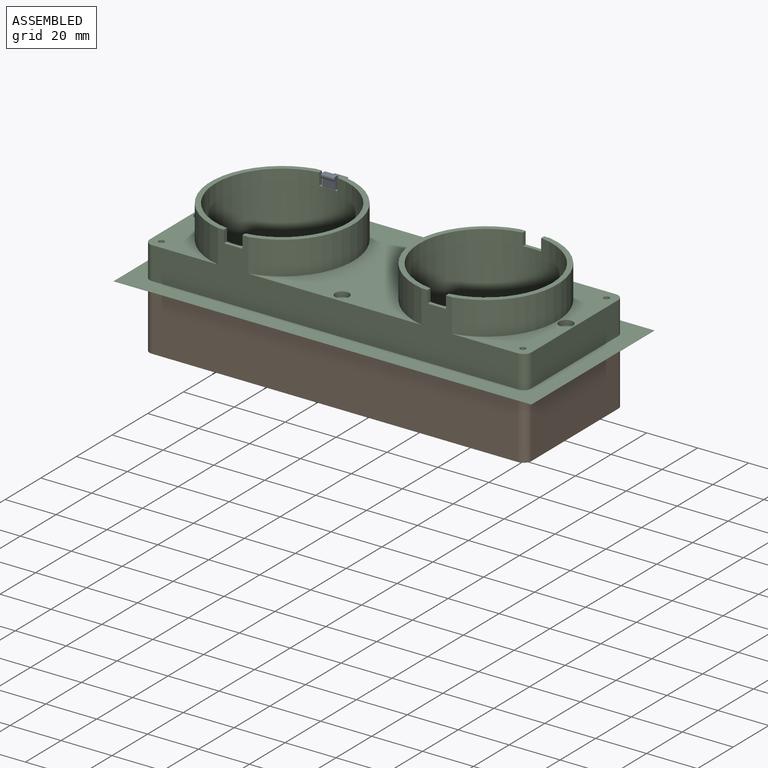
[diagram: assembled view]
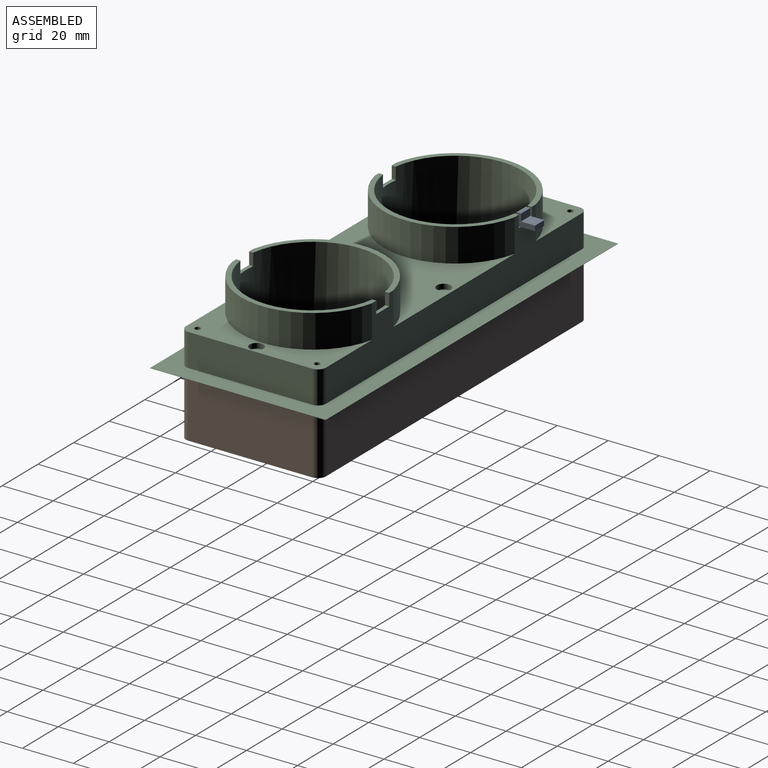
[diagram: assembled view, second angle]
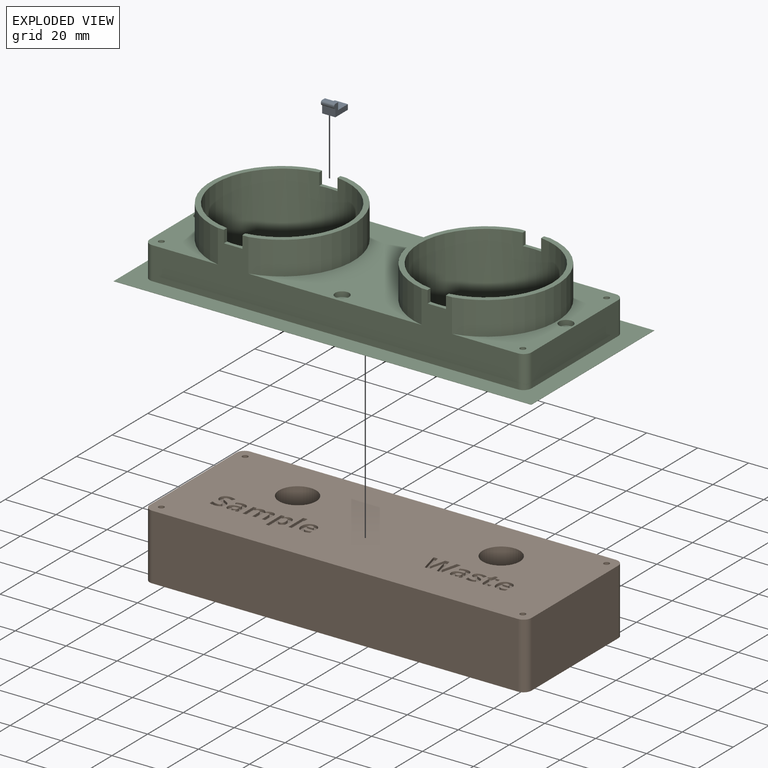
[diagram: exploded view]
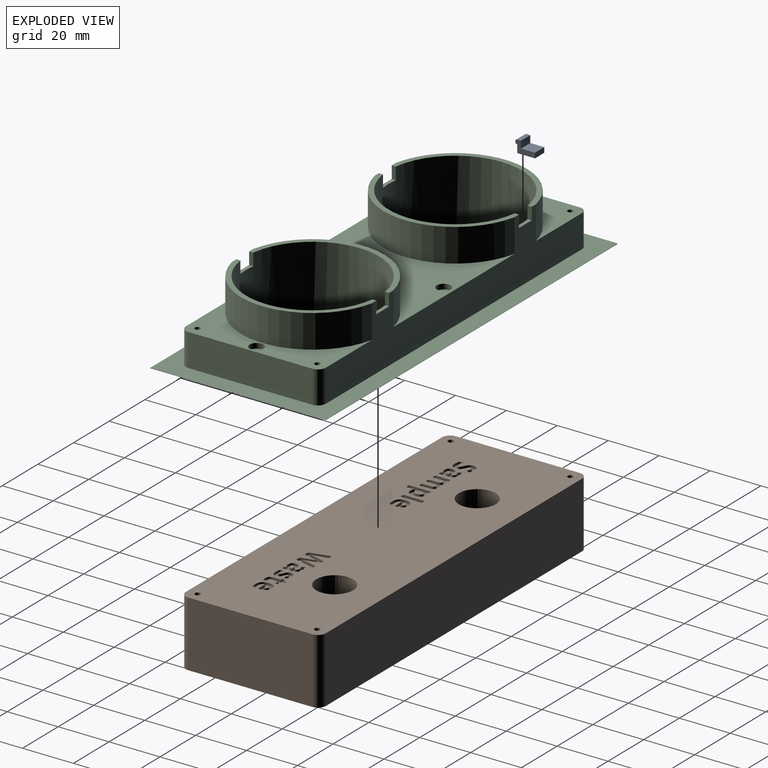
[diagram: exploded view, second angle]
ASSEMBLY  parts=3 mates=2
PART A: 11 faces, bbox 7.8x4.8x5.2 mm
  f0: plane 5.2x3.05mm, normal (1,0,0), area 15.9mm2, adj f1,f8,f9,f10
  f1: cylinder r=0.75mm len=5.2mm, axis (0,0,-1), area 6.1mm2, adj f0,f2,f9,f10
  f2: plane 5.2x0.25mm, normal (1,0,0), area 1.3mm2, adj f1,f3,f9,f10
  f3: cylinder r=0.75mm len=5.2mm, axis (0,0,-1), area 6.1mm2, adj f2,f4,f9,f10
  f4: plane 5.2x1.5mm, normal (0,1,0), area 7.8mm2, adj f3,f5,f9,f10
  f5: plane 5.2x2.8mm, normal (-1,0,0), area 14.6mm2, adj f4,f6,f9,f10
  f6: plane 5.5x5.2mm, normal (0,1,0), area 28.6mm2, adj f5,f7,f9,f10
  f7: plane 5.2x2mm, normal (-1,0,0), area 10.4mm2, adj f6,f8,f9,f10
  f8: plane 7x5.2mm, normal (0,-1,0), area 36.4mm2, adj f0,f7,f9,f10
  f9: plane 7.75x4.8mm, normal (0,0,1), area 19.3mm2, adj f0,f1,f2,f3,f4,f5,f6,f7
  f10: plane 7.75x4.8mm, normal (0,0,-1), area 19.3mm2, adj f0,f1,f2,f3,f4,f5,f6,f7
PART B: 285 faces, bbox 150x55x25.8 mm
  f0: plane 150x55mm, normal (0,0,1), area 7604.2mm2, adj f6,f7,f8,f9,f10,f11,f12,f13
  f1: cylinder r=4mm len=11mm, axis (0,0,1), area 276.5mm2, adj f14,f18
  f2: cylinder r=4mm len=11mm, axis (0,0,1), area 276.5mm2, adj f15,f17
  f3: cylinder r=1.24mm len=3.3mm, axis (0,0,1), area 25.8mm2, adj f5,f15
  f4: cylinder r=1.24mm len=3.3mm, axis (0,0,1), area 25.8mm2, adj f5,f14
  f5: plane 150x55mm, normal (0,0,-1), area 8231.6mm2, adj f3,f4,f6,f7,f8,f9,f10,f11
  f6: plane 48.65x25.8mm, normal (-1,0,0), area 1255.2mm2, adj f0,f5,f10,f13
  f7: plane 143.65x25.8mm, normal (0,-1,0), area 3706.2mm2, adj f0,f5,f10,f11
  f8: plane 48.65x25.8mm, normal (1,0,0), area 1255.2mm2, adj f0,f5,f11,f12
  f9: plane 143.65x25.8mm, normal (0,1,0), area 3706.2mm2, adj f0,f5,f12,f13
  f10: cylinder r=3.17mm len=25.8mm, axis (0,0,1), area 128.7mm2, adj f0,f5,f6,f7
  f11: cylinder r=3.17mm len=25.8mm, axis (0,0,-1), area 128.7mm2, adj f0,f5,f7,f8
  f12: cylinder r=3.17mm len=25.8mm, axis (0,0,1), area 128.7mm2, adj f0,f5,f8,f9
  f13: cylinder r=3.17mm len=25.8mm, axis (0,0,-1), area 128.7mm2, adj f0,f5,f6,f9
  f14: plane 8x8mm, normal (0,0,1), area 45.4mm2, adj f1,f4
  f15: plane 8x8mm, normal (0,0,1), area 45.4mm2, adj f2,f3
  f16: cylinder r=7.3mm len=14.6mm, axis (0,0,1), area 527.5mm2, adj f0,f17
  f17: plane 14.6x14.6mm, normal (0,0,1), area 117.1mm2, adj f2,f16
  f18: plane 14.6x14.6mm, normal (0,0,1), area 117.1mm2, adj f1,f19
  f19: cylinder r=7.3mm len=14.6mm, axis (0,0,1), area 527.5mm2, adj f0,f18
  f20: cylinder r=1.1mm len=5mm, axis (0,0,1), area 34.6mm2, adj f0,f21
  f21: plane 2.2x2.2mm, normal (0,0,1), area 3.8mm2, adj f20
  f22: cylinder r=1.1mm len=5mm, axis (0,0,1), area 34.6mm2, adj f0,f23
  f23: plane 2.2x2.2mm, normal (0,0,1), area 3.8mm2, adj f22
  f24: cylinder r=1.1mm len=5mm, axis (0,0,1), area 34.6mm2, adj f0,f25
  f25: plane 2.2x2.2mm, normal (0,0,1), area 3.8mm2, adj f24
  f26: cylinder r=1.1mm len=5mm, axis (0,0,1), area 34.6mm2, adj f0,f27
  f27: plane 2.2x2.2mm, normal (0,0,1), area 3.8mm2, adj f26
  f28: plane 1.92x1mm, normal (0,1,0), area 1.9mm2, adj f0,f29,f51,f52
  f29: plane 7.93x2.02mm, normal (-0.97,0.25,0), area 8.2mm2, adj f0,f28,f30,f52
  f30: plane 1.66x1mm, normal (0,-1,0), area 1.7mm2, adj f0,f29,f31,f52
  f31: plane 4.33x1.01mm, normal (0.97,-0.23,0), area 4.4mm2, adj f0,f30,f32,f52
  f32: extruded ~1.02x1mm, area 1mm2, adj f0,f31,f33,f52
  f33: extruded ~1.06x1mm, area 1.1mm2, adj f0,f32,f34,f52
  f34: extruded ~1.05x1mm, area 1.1mm2, adj f0,f33,f35,f52
  f35: extruded ~1x0.91mm, area 0.9mm2, adj f0,f34,f36,f52
  f36: plane 4.44x1.16mm, normal (-0.97,-0.25,0), area 4.6mm2, adj f0,f35,f37,f52
  f37: plane 1.59x1mm, normal (0,-1,0), area 1.6mm2, adj f0,f36,f38,f52
  f38: plane 4.44x1.16mm, normal (0.97,-0.25,0), area 4.6mm2, adj f0,f37,f39,f52
  f39: extruded ~1.01x1mm, area 1mm2, adj f0,f38,f40,f52
  f40: extruded ~1x0.96mm, area 1mm2, adj f0,f39,f41,f52
  f41: extruded ~2.08x1mm, area 2.1mm2, adj f0,f40,f42,f52
  f42: plane 4.33x1.02mm, normal (-0.97,-0.23,0), area 4.4mm2, adj f0,f41,f43,f52
  f43: plane 1.65x1mm, normal (0,-1,0), area 1.7mm2, adj f0,f42,f44,f52
  f44: plane 7.93x2.02mm, normal (0.97,0.25,0), area 8.2mm2, adj f0,f43,f45,f52
  f45: plane 1.91x1mm, normal (0,1,0), area 1.9mm2, adj f0,f44,f46,f52
  f46: plane 4.16x1.07mm, normal (-0.97,0.25,0), area 4.3mm2, adj f0,f45,f47,f52
  f47: extruded ~1x0.92mm, area 0.9mm2, adj f0,f46,f48,f52
  f48: extruded ~1x0.94mm, area 1mm2, adj f0,f47,f49,f52
  f49: extruded ~1x0.94mm, area 1mm2, adj f0,f48,f50,f52
  f50: extruded ~1x0.92mm, area 0.9mm2, adj f0,f49,f51,f52
  f51: plane 4.17x1.07mm, normal (0.97,0.25,0), area 4.3mm2, adj f0,f28,f50,f52
  f52: plane 10.74x7.93mm, normal (0,0,1), area 43.5mm2, adj f28,f29,f30,f31,f32,f33,f34,f35
  f53: extruded ~2.29x1mm, area 2.5mm2, adj f0,f54,f72,f73
  f54: extruded ~1.21x1mm, area 1.2mm2, adj f0,f53,f55,f73
  f55: extruded ~1x0.93mm, area 1mm2, adj f0,f54,f56,f73
  f56: plane 1.28x1mm, normal (-1,0,0), area 1.3mm2, adj f0,f55,f57,f73
  f57: extruded ~1.02x1mm, area 1.1mm2, adj f0,f56,f58,f73
  f58: extruded ~1.04x1mm, area 1mm2, adj f0,f57,f59,f73
  f59: extruded ~1.1x1mm, area 1.2mm2, adj f0,f58,f60,f73
  f60: extruded ~1.1x1mm, area 1.2mm2, adj f0,f59,f61,f73
  f61: plane 3.91x1mm, normal (0,1,0), area 3.9mm2, adj f0,f60,f62,f73
  f62: plane 1x0.8mm, normal (-1,0,0), area 0.8mm2, adj f0,f61,f63,f73
  f63: extruded ~2.02x1mm, area 2.2mm2, adj f0,f62,f64,f73
  f64: extruded ~2x1mm, area 2.2mm2, adj f0,f63,f65,f73
  f65: extruded ~2.11x1mm, area 2.3mm2, adj f0,f64,f66,f73
  f66: extruded ~2.36x1mm, area 2.5mm2, adj f0,f65,f72,f73
  f67: extruded ~1x0.82mm, area 0.9mm2, adj f68,f71,f73,f74
  f68: extruded ~1x0.84mm, area 0.9mm2, adj f67,f69,f73,f74
  f69: extruded ~1x0.95mm, area 1mm2, adj f68,f70,f73,f74
  f70: plane 2.32x1mm, normal (0,-1,0), area 2.3mm2, adj f69,f71,f73,f74
  f71: extruded ~1x0.95mm, area 1mm2, adj f67,f70,f73,f74
  f72: extruded ~2.29x1mm, area 2.5mm2, adj f0,f53,f66,f73
  f73: plane 6.29x5.59mm, normal (0,0,1), area 22.2mm2, adj f53,f54,f55,f56,f57,f58,f59,f60
  f74: plane 2.32x1.28mm, normal (0,0,1), area 2.4mm2, adj f67,f68,f69,f70,f71
  f75: extruded ~1x0.9mm, area 1mm2, adj f76,f97,f98,f282
  f76: extruded ~1x0.86mm, area 1mm2, adj f75,f77,f98,f282
  f77: extruded ~1.34x1mm, area 1.4mm2, adj f76,f78,f98,f282
  f78: extruded ~1.84x1.11mm, area 2.4mm2, adj f77,f79,f98,f282
  f79: extruded ~1x0.92mm, area 1.1mm2, adj f78,f80,f98,f282
  f80: extruded ~1.4x1mm, area 1.4mm2, adj f79,f81,f98,f282
  f81: plane 1x0.18mm, normal (-1,0,0), area 0.2mm2, adj f80,f97,f98,f282
  f82: extruded ~1.68x1mm, area 1.9mm2, adj f0,f83,f96,f98
  f83: extruded ~1.24x1mm, area 1.3mm2, adj f0,f82,f84,f98
  f84: extruded ~1.09x1mm, area 1.4mm2, adj f0,f83,f85,f98
  f85: extruded ~1.69x1mm, area 1.7mm2, adj f0,f84,f86,f98
  f86: extruded ~2.31x1mm, area 2.4mm2, adj f0,f85,f87,f98
  f87: extruded ~1.68x1mm, area 2mm2, adj f0,f86,f88,f98
  f88: extruded ~1.72x1mm, area 2mm2, adj f0,f87,f89,f98
  f89: plane 1x0.08mm, normal (0,-1,0), area 0.1mm2, adj f0,f88,f90,f98
  f90: plane 1x0.79mm, normal (-0.96,-0.28,0), area 0.8mm2, adj f0,f89,f91,f98
  f91: plane 1.35x1mm, normal (0,-1,0), area 1.3mm2, adj f0,f90,f92,f98
  f92: plane 8.74x1mm, normal (1,0,0), area 8.7mm2, adj f0,f91,f93,f98
  f93: plane 1.65x1mm, normal (0,1,0), area 1.7mm2, adj f0,f92,f94,f98
  f94: plane 2.46x1mm, normal (-1,0,0), area 2.5mm2, adj f0,f93,f95,f98
  f95: extruded ~1x0.88mm, area 0.9mm2, adj f0,f94,f96,f98
  f96: plane 1x0.09mm, normal (0,1,0), area 0.1mm2, adj f0,f82,f95,f98
  f97: extruded ~1.24x1mm, area 1.3mm2, adj f75,f81,f98,f282
  f98: plane 8.85x5.67mm, normal (0,0,1), area 28.9mm2, adj f75,f76,f77,f78,f79,f80,f81,f82
  f99: extruded ~1.42x1mm, area 1.6mm2, adj f0,f100,f124,f125
  f100: extruded ~1x0.78mm, area 0.8mm2, adj f0,f99,f101,f125
  f101: extruded ~1x0.57mm, area 0.8mm2, adj f0,f100,f102,f125
  f102: extruded ~1.04x1mm, area 1.2mm2, adj f0,f101,f103,f125
  f103: extruded ~1.03x1mm, area 1.1mm2, adj f0,f102,f104,f125
  f104: extruded ~1x0.39mm, area 0.5mm2, adj f0,f103,f105,f125
  f105: extruded ~1x0.73mm, area 0.9mm2, adj f0,f104,f106,f125
  f106: extruded ~1x0.81mm, area 0.8mm2, adj f0,f105,f107,f125
  f107: extruded ~1x0.85mm, area 0.9mm2, adj f0,f106,f108,f125
  f108: plane 1.19x1mm, normal (-0.92,0.39,0), area 1.3mm2, adj f0,f107,f109,f125
  f109: extruded ~2.13x1mm, area 2.2mm2, adj f0,f108,f110,f125
  f110: extruded ~1.78x1mm, area 1.9mm2, adj f0,f109,f111,f125
  f111: extruded ~1.25x1mm, area 1.5mm2, adj f0,f110,f112,f125
  f112: extruded ~1x0.79mm, area 0.8mm2, adj f0,f111,f113,f125
  f113: extruded ~1x0.57mm, area 0.8mm2, adj f0,f112,f114,f125
  f114: extruded ~1.03x1mm, area 1.2mm2, adj f0,f113,f115,f125
  f115: extruded ~1x0.78mm, area 0.9mm2, adj f0,f114,f116,f125
  f116: extruded ~1x0.41mm, area 0.5mm2, adj f0,f115,f117,f125
  f117: extruded ~1x0.32mm, area 0.3mm2, adj f0,f116,f118,f125
  f118: extruded ~1x0.9mm, area 1.2mm2, adj f0,f117,f119,f125
  f119: extruded ~1.02x1mm, area 1mm2, adj f0,f118,f120,f125
  f120: extruded ~1.04x1mm, area 1.1mm2, adj f0,f119,f121,f125
  f121: plane 1.37x1mm, normal (1,0,0), area 1.4mm2, adj f0,f120,f122,f125
  f122: extruded ~1x0.87mm, area 0.9mm2, adj f0,f121,f123,f125
  f123: extruded ~1.13x1mm, area 1.1mm2, adj f0,f122,f124,f125
  f124: extruded ~1.94x1mm, area 2mm2, adj f0,f99,f123,f125
  f125: plane 6.29x4.6mm, normal (0,0,1), area 18.4mm2, adj f99,f100,f101,f102,f103,f104,f105,f106
  f126: extruded ~1.04x1mm, area 1.1mm2, adj f0,f127,f143,f144
  f127: extruded ~1x0.52mm, area 0.6mm2, adj f0,f126,f128,f144
  f128: extruded ~1x0.52mm, area 0.6mm2, adj f0,f127,f129,f144
  f129: plane 2.92x1mm, normal (-1,0,0), area 2.9mm2, adj f0,f128,f130,f144
  f130: plane 1.7x1mm, normal (0,1,0), area 1.7mm2, adj f0,f129,f131,f144
  f131: plane 1.24x1mm, normal (-1,0,0), area 1.2mm2, adj f0,f130,f132,f144
  f132: plane 1.7x1mm, normal (0,-1,0), area 1.7mm2, adj f0,f131,f133,f144
  f133: plane 1.29x1mm, normal (-1,0,0), area 1.3mm2, adj f0,f132,f134,f144
  f134: plane 1.06x1mm, normal (0,-1,0), area 1.1mm2, adj f0,f133,f135,f144
  f135: plane 1.28x1mm, normal (0.94,-0.35,0), area 1.4mm2, adj f0,f134,f136,f144
  f136: plane 1x0.91mm, normal (0.52,-0.85,0), area 1.1mm2, adj f0,f135,f137,f144
  f137: plane 1x0.7mm, normal (1,0,0), area 0.7mm2, adj f0,f136,f138,f144
  f138: plane 1x0.79mm, normal (0,1,0), area 0.8mm2, adj f0,f137,f139,f144
  f139: plane 2.92x1mm, normal (1,0,0), area 2.9mm2, adj f0,f138,f140,f144
  f140: extruded ~1.51x1mm, area 1.6mm2, adj f0,f139,f141,f144
  f141: extruded ~1.45x1mm, area 1.6mm2, adj f0,f140,f142,f144
  f142: extruded ~1.52x1mm, area 1.6mm2, adj f0,f141,f143,f144
  f143: plane 1.23x1mm, normal (-1,0,0), area 1.2mm2, adj f0,f126,f142,f144
  f144: plane 7.47x4.21mm, normal (0,0,1), area 16.5mm2, adj f126,f127,f128,f129,f130,f131,f132,f133
  f145: extruded ~1.69x1mm, area 1.9mm2, adj f0,f146,f172,f173
  f146: extruded ~1.31x1mm, area 1.4mm2, adj f0,f145,f147,f173
  f147: extruded ~1.53x1.07mm, area 1.9mm2, adj f0,f146,f148,f173
  f148: extruded ~1.07x1mm, area 1.2mm2, adj f0,f147,f149,f173
  f149: extruded ~1x0.33mm, area 0.5mm2, adj f0,f148,f150,f173
  f150: extruded ~1x0.39mm, area 0.4mm2, adj f0,f149,f151,f173
  f151: extruded ~1x0.58mm, area 0.7mm2, adj f0,f150,f152,f173
  f152: extruded ~1x0.73mm, area 0.8mm2, adj f0,f151,f153,f173
  f153: extruded ~1x0.82mm, area 0.8mm2, adj f0,f152,f154,f173
  f154: extruded ~1.05x1mm, area 1.1mm2, adj f0,f153,f155,f173
  f155: plane 1.31x1mm, normal (-0.92,0.38,0), area 1.4mm2, adj f0,f154,f156,f173
  f156: extruded ~1.17x1mm, area 1.2mm2, adj f0,f155,f157,f173
  f157: extruded ~1.18x1mm, area 1.2mm2, adj f0,f156,f158,f173
  f158: extruded ~1.97x1mm, area 2.1mm2, adj f0,f157,f159,f173
  f159: extruded ~1.66x1mm, area 1.9mm2, adj f0,f158,f160,f173
  f160: extruded ~1x0.98mm, area 1mm2, adj f0,f159,f161,f173
  f161: extruded ~1x0.73mm, area 0.9mm2, adj f0,f160,f162,f173
  f162: extruded ~1.09x1mm, area 1.3mm2, adj f0,f161,f163,f173
  f163: extruded ~1.03x1mm, area 1.2mm2, adj f0,f162,f164,f173
  f164: extruded ~1x0.38mm, area 0.5mm2, adj f0,f163,f165,f173
  f165: extruded ~1x0.42mm, area 0.4mm2, adj f0,f164,f166,f173
  f166: extruded ~1x0.63mm, area 0.7mm2, adj f0,f165,f167,f173
  f167: extruded ~1x0.85mm, area 0.9mm2, adj f0,f166,f168,f173
  f168: extruded ~1.02x1mm, area 1mm2, adj f0,f167,f169,f173
  f169: extruded ~1.36x1mm, area 1.5mm2, adj f0,f168,f170,f173
  f170: plane 1.56x1mm, normal (1,0,0), area 1.6mm2, adj f0,f169,f171,f173
  f171: extruded ~2.25x1mm, area 2.3mm2, adj f0,f170,f172,f173
  f172: extruded ~2.15x1mm, area 2.3mm2, adj f0,f145,f171,f173
  f173: plane 8.15x5.17mm, normal (0,0,1), area 23.7mm2, adj f145,f146,f147,f148,f149,f150,f151,f152
  f174: plane 1.65x1mm, normal (0,1,0), area 1.7mm2, adj f0,f175,f201,f202
  f175: plane 3.04x1mm, normal (-1,0,0), area 3mm2, adj f0,f174,f176,f202
  f176: extruded ~1.38x1mm, area 1.4mm2, adj f0,f175,f177,f202
  f177: extruded ~1x0.91mm, area 1.1mm2, adj f0,f176,f178,f202
  f178: extruded ~1x0.69mm, area 0.8mm2, adj f0,f177,f179,f202
  f179: extruded ~1x0.98mm, area 1mm2, adj f0,f178,f180,f202
  f180: plane 3.54x1mm, normal (1,0,0), area 3.5mm2, adj f0,f179,f181,f202
  f181: plane 1.66x1mm, normal (0,1,0), area 1.7mm2, adj f0,f180,f182,f202
  f182: plane 3.96x1mm, normal (-1,0,0), area 4mm2, adj f0,f181,f183,f202
  f183: extruded ~1.7x1mm, area 1.8mm2, adj f0,f182,f184,f202
  f184: extruded ~1.56x1mm, area 1.7mm2, adj f0,f183,f185,f202
  f185: extruded ~1.07x1mm, area 1.1mm2, adj f0,f184,f186,f202
  f186: extruded ~1x0.72mm, area 1mm2, adj f0,f185,f187,f202
  f187: plane 1x0.15mm, normal (0,-1,0), area 0.1mm2, adj f0,f186,f188,f202
  f188: extruded ~1.85x1mm, area 2.2mm2, adj f0,f187,f189,f202
  f189: extruded ~1.06x1mm, area 1.1mm2, adj f0,f188,f190,f202
  f190: extruded ~1x0.71mm, area 1mm2, adj f0,f189,f191,f202
  f191: plane 1x0.09mm, normal (0,-1,0), area 0.1mm2, adj f0,f190,f192,f202
  f192: plane 1x0.78mm, normal (-0.96,-0.28,0), area 0.8mm2, adj f0,f191,f193,f202
  f193: plane 1.26x1mm, normal (0,-1,0), area 1.3mm2, adj f0,f192,f194,f202
  f194: plane 6.07x1mm, normal (1,0,0), area 6.1mm2, adj f0,f193,f195,f202
  f195: plane 1.65x1mm, normal (0,1,0), area 1.7mm2, adj f0,f194,f196,f202
  f196: plane 2.85x1mm, normal (-1,0,0), area 2.9mm2, adj f0,f195,f197,f202
  f197: extruded ~1.53x1mm, area 1.6mm2, adj f0,f196,f198,f202
  f198: extruded ~1x0.92mm, area 1.1mm2, adj f0,f197,f199,f202
  f199: extruded ~1x0.69mm, area 0.8mm2, adj f0,f198,f200,f202
  f200: extruded ~1x0.98mm, area 1mm2, adj f0,f199,f201,f202
  f201: plane 3.54x1mm, normal (1,0,0), area 3.5mm2, adj f0,f174,f200,f202
  f202: plane 9.21x6.18mm, normal (0,0,1), area 34.9mm2, adj f174,f175,f176,f177,f178,f179,f180,f181
  f203: plane 1x0.64mm, normal (-0.04,1,0), area 0.6mm2, adj f204,f227,f228,f283
  f204: plane 1x0.5mm, normal (1,0,0), area 0.5mm2, adj f203,f205,f228,f283
  f205: extruded ~1x0.88mm, area 1mm2, adj f204,f206,f228,f283
  f206: extruded ~1x0.92mm, area 1mm2, adj f205,f207,f228,f283
  f207: extruded ~1x0.8mm, area 1.2mm2, adj f206,f208,f228,f283
  f208: extruded ~1x0.73mm, area 0.8mm2, adj f207,f227,f228,f283
  f209: plane 1x0.82mm, normal (0.93,0.36,0), area 0.9mm2, adj f0,f210,f226,f228
  f210: plane 1.15x1mm, normal (0,1,0), area 1.2mm2, adj f0,f209,f211,f228
  f211: plane 4.04x1mm, normal (-1,0,0), area 4mm2, adj f0,f210,f212,f228
  f212: extruded ~1.62x1mm, area 1.8mm2, adj f0,f211,f213,f228
  f213: extruded ~1.87x1mm, area 2mm2, adj f0,f212,f214,f228
  f214: extruded ~2.32x1mm, area 2.4mm2, adj f0,f213,f215,f228
  f215: plane 1.12x1mm, normal (0.9,0.44,0), area 1.2mm2, adj f0,f214,f216,f228
  f216: extruded ~1.71x1mm, area 1.8mm2, adj f0,f215,f217,f228
  f217: extruded ~1x0.94mm, area 1.5mm2, adj f0,f216,f218,f228
  f218: plane 1x0.27mm, normal (1,0,0), area 0.3mm2, adj f0,f217,f219,f228
  f219: plane 1.05x1mm, normal (0.03,-1,0), area 1.1mm2, adj f0,f218,f220,f228
  f220: extruded ~2.04x1mm, area 2.1mm2, adj f0,f219,f221,f228
  f221: extruded ~1.42x1mm, area 1.6mm2, adj f0,f220,f222,f228
  f222: extruded ~1.42x1mm, area 1.5mm2, adj f0,f221,f223,f228
  f223: extruded ~1.38x1mm, area 1.5mm2, adj f0,f222,f224,f228
  f224: extruded ~1.15x1mm, area 1.2mm2, adj f0,f223,f225,f228
  f225: extruded ~1x0.86mm, area 1.1mm2, adj f0,f224,f226,f228
  f226: plane 1x0.04mm, normal (0,1,0), area 0mm2, adj f0,f209,f225,f228
  f227: extruded ~1.07x1mm, area 1.1mm2, adj f203,f208,f228,f283
  f228: plane 6.3x5.41mm, normal (0,0,1), area 22.5mm2, adj f203,f204,f205,f206,f207,f208,f209,f210
  f229: extruded ~2.29x1mm, area 2.5mm2, adj f0,f230,f248,f249
  f230: extruded ~1.21x1mm, area 1.2mm2, adj f0,f229,f231,f249
  f231: extruded ~1x0.93mm, area 1mm2, adj f0,f230,f232,f249
  f232: plane 1.28x1mm, normal (-1,0,0), area 1.3mm2, adj f0,f231,f233,f249
  f233: extruded ~1.02x1mm, area 1.1mm2, adj f0,f232,f234,f249
  f234: extruded ~1.04x1mm, area 1mm2, adj f0,f233,f235,f249
  f235: extruded ~1.1x1mm, area 1.2mm2, adj f0,f234,f236,f249
  f236: extruded ~1.1x1mm, area 1.2mm2, adj f0,f235,f237,f249
  f237: plane 3.91x1mm, normal (0,1,0), area 3.9mm2, adj f0,f236,f238,f249
  f238: plane 1x0.8mm, normal (-1,0,0), area 0.8mm2, adj f0,f237,f239,f249
  f239: extruded ~2.02x1mm, area 2.2mm2, adj f0,f238,f240,f249
  f240: extruded ~2x1mm, area 2.2mm2, adj f0,f239,f241,f249
  f241: extruded ~2.11x1mm, area 2.3mm2, adj f0,f240,f242,f249
  f242: extruded ~2.36x1mm, area 2.5mm2, adj f0,f241,f248,f249
  f243: extruded ~1x0.82mm, area 0.9mm2, adj f244,f247,f249,f250
  f244: extruded ~1x0.84mm, area 0.9mm2, adj f243,f245,f249,f250
  f245: extruded ~1x0.95mm, area 1mm2, adj f244,f246,f249,f250
  f246: plane 2.32x1mm, normal (0,-1,0), area 2.3mm2, adj f245,f247,f249,f250
  f247: extruded ~1x0.95mm, area 1mm2, adj f243,f246,f249,f250
  f248: extruded ~2.29x1mm, area 2.5mm2, adj f0,f229,f242,f249
  f249: plane 6.29x5.59mm, normal (0,0,1), area 22.2mm2, adj f229,f230,f231,f232,f233,f234,f235,f236
  f250: plane 2.32x1.28mm, normal (0,0,1), area 2.4mm2, adj f243,f244,f245,f246,f247
  f251: plane 1x0.64mm, normal (-0.04,1,0), area 0.6mm2, adj f252,f275,f276,f284
  f252: plane 1x0.5mm, normal (1,0,0), area 0.5mm2, adj f251,f253,f276,f284
  f253: extruded ~1x0.88mm, area 1mm2, adj f252,f254,f276,f284
  f254: extruded ~1x0.92mm, area 1mm2, adj f253,f255,f276,f284
  f255: extruded ~1x0.8mm, area 1.2mm2, adj f254,f256,f276,f284
  f256: extruded ~1x0.73mm, area 0.8mm2, adj f255,f275,f276,f284
  f257: plane 1x0.82mm, normal (0.93,0.36,0), area 0.9mm2, adj f0,f258,f274,f276
  f258: plane 1.15x1mm, normal (0,1,0), area 1.2mm2, adj f0,f257,f259,f276
  f259: plane 4.04x1mm, normal (-1,0,0), area 4mm2, adj f0,f258,f260,f276
  f260: extruded ~1.62x1mm, area 1.8mm2, adj f0,f259,f261,f276
  f261: extruded ~1.87x1mm, area 2mm2, adj f0,f260,f262,f276
  f262: extruded ~2.32x1mm, area 2.4mm2, adj f0,f261,f263,f276
  f263: plane 1.12x1mm, normal (0.9,0.44,0), area 1.2mm2, adj f0,f262,f264,f276
  f264: extruded ~1.71x1mm, area 1.8mm2, adj f0,f263,f265,f276
  f265: extruded ~1x0.94mm, area 1.5mm2, adj f0,f264,f266,f276
  f266: plane 1x0.27mm, normal (1,0,0), area 0.3mm2, adj f0,f265,f267,f276
  f267: plane 1.05x1mm, normal (0.03,-1,0), area 1.1mm2, adj f0,f266,f268,f276
  f268: extruded ~2.04x1mm, area 2.1mm2, adj f0,f267,f269,f276
  f269: extruded ~1.42x1mm, area 1.6mm2, adj f0,f268,f270,f276
  f270: extruded ~1.42x1mm, area 1.5mm2, adj f0,f269,f271,f276
  f271: extruded ~1.38x1mm, area 1.5mm2, adj f0,f270,f272,f276
  f272: extruded ~1.15x1mm, area 1.2mm2, adj f0,f271,f273,f276
  f273: extruded ~1x0.86mm, area 1.1mm2, adj f0,f272,f274,f276
  f274: plane 1x0.04mm, normal (0,1,0), area 0mm2, adj f0,f257,f273,f276
  f275: extruded ~1.07x1mm, area 1.1mm2, adj f251,f256,f276,f284
  f276: plane 6.3x5.41mm, normal (0,0,1), area 22.5mm2, adj f251,f252,f253,f254,f255,f256,f257,f258
  f277: plane 1.65x1mm, normal (0,1,0), area 1.7mm2, adj f0,f278,f280,f281
  f278: plane 8.44x1mm, normal (-1,0,0), area 8.4mm2, adj f0,f277,f279,f281
  f279: plane 1.65x1mm, normal (0,-1,0), area 1.7mm2, adj f0,f278,f280,f281
  f280: plane 8.44x1mm, normal (1,0,0), area 8.4mm2, adj f0,f277,f279,f281
  f281: plane 8.44x1.65mm, normal (0,0,1), area 14mm2, adj f277,f278,f279,f280
  f282: plane 3.63x2.32mm, normal (0,0,1), area 7.1mm2, adj f75,f76,f77,f78,f79,f80,f81,f97
  f283: plane 2.07x1.71mm, normal (0,0,1), area 2.9mm2, adj f203,f204,f205,f206,f207,f208,f227
  f284: plane 2.07x1.71mm, normal (0,0,1), area 2.9mm2, adj f251,f252,f253,f254,f255,f256,f275
PART C: 66 faces, bbox 164x69x25.9 mm
  f0: plane 5.5x5.5mm, normal (0,0,-1), area 20mm2, adj f41,f55
  f1: plane 55x24.54mm, normal (0,0,1), area 155mm2, adj f2,f4,f11,f20,f48,f51
  f2: plane 143.65x25.8mm, normal (0,1,0), area 2081mm2, adj f1,f3,f6,f9,f13,f14,f15,f16
  f3: plane 55x24.54mm, normal (0,0,1), area 155mm2, adj f2,f5,f11,f18,f42,f45
  f4: cylinder r=26.14mm len=52.29mm, axis (0,0,1), area 4168.8mm2, adj f1,f9,f48,f49,f50,f51,f52,f53
  f5: cylinder r=26.14mm len=52.29mm, axis (0,0,1), area 4168.8mm2, adj f3,f15,f42,f43,f44,f45,f46,f47
  f6: plane 68.02x55mm, normal (0,0,1), area 1874.3mm2, adj f2,f11,f16,f17,f34,f36
  f7: plane 48.65x12.8mm, normal (-1,0,0), area 622.7mm2, adj f10,f14,f19,f60
  f8: plane 48.65x12.8mm, normal (1,0,0), area 622.7mm2, adj f12,f13,f21,f60
  f9: plane 55x24.54mm, normal (0,0,1), area 155mm2, adj f2,f4,f11,f17,f49,f52
  f10: cylinder r=3.17mm len=12.8mm, axis (0,0,-1), area 63.8mm2, adj f7,f11,f19,f60
  f11: plane 143.65x25.8mm, normal (0,-1,0), area 2081mm2, adj f1,f3,f6,f9,f10,f12,f15,f16
  f12: cylinder r=3.17mm len=12.8mm, axis (0,0,-1), area 63.8mm2, adj f8,f11,f21,f60
  f13: cylinder r=3.17mm len=12.8mm, axis (0,0,-1), area 63.8mm2, adj f2,f8,f21,f60
  f14: cylinder r=3.17mm len=12.8mm, axis (0,0,-1), area 63.8mm2, adj f2,f7,f19,f60
  f15: plane 55x24.54mm, normal (0,0,1), area 155mm2, adj f2,f5,f11,f16,f43,f46
  f16: cylinder r=28.14mm len=55mm, axis (0,0,1), area 992.5mm2, adj f2,f6,f11,f15
  f17: cylinder r=28.14mm len=55mm, axis (0,0,1), area 992.5mm2, adj f2,f6,f9,f11
  f18: cylinder r=28.14mm len=55mm, axis (0,0,1), area 992.5mm2, adj f2,f3,f11,f19
  f19: plane 55x29.01mm, normal (0,0,1), area 650.2mm2, adj f2,f7,f10,f11,f14,f18,f26,f28
  f20: cylinder r=28.14mm len=55mm, axis (0,0,1), area 992.5mm2, adj f1,f2,f11,f21
  f21: plane 55x29.01mm, normal (0,0,1), area 650.2mm2, adj f2,f8,f11,f12,f13,f20,f22,f24
  f22: cylinder r=1.1mm len=5mm, axis (0,0,1), area 34.6mm2, adj f21,f23
  f23: plane 2.2x2.2mm, normal (0,0,1), area 3.8mm2, adj f22
  f24: cylinder r=1.1mm len=5mm, axis (0,0,1), area 34.6mm2, adj f21,f25
  f25: plane 2.2x2.2mm, normal (0,0,1), area 3.8mm2, adj f24
  f26: cylinder r=1.1mm len=5mm, axis (0,0,1), area 34.6mm2, adj f19,f27
  f27: plane 2.2x2.2mm, normal (0,0,1), area 3.8mm2, adj f26
  f28: cylinder r=1.1mm len=5mm, axis (0,0,1), area 34.6mm2, adj f19,f29
  f29: plane 2.2x2.2mm, normal (0,0,1), area 3.8mm2, adj f28
  f30: cylinder r=2.75mm len=5.5mm, axis (0,0,1), area 34.6mm2, adj f21,f31
  f31: plane 5.5x5.5mm, normal (0,0,1), area 20mm2, adj f30,f40
  f32: cylinder r=2.75mm len=5.5mm, axis (0,0,1), area 34.6mm2, adj f19,f33
  f33: plane 5.5x5.5mm, normal (0,0,1), area 20mm2, adj f32,f41
  f34: cylinder r=2.75mm len=5.5mm, axis (0,0,1), area 34.6mm2, adj f6,f35
  f35: plane 5.5x5.5mm, normal (0,0,1), area 20mm2, adj f34,f39
  f36: cylinder r=2.75mm len=5.5mm, axis (0,0,1), area 34.6mm2, adj f6,f37
  f37: plane 5.5x5.5mm, normal (0,0,1), area 20mm2, adj f36,f38
  f38: cylinder r=1.1mm len=10.8mm, axis (0,0,1), area 74.6mm2, adj f37,f65
  f39: cylinder r=1.1mm len=10.8mm, axis (0,0,1), area 74.6mm2, adj f35,f62
  f40: cylinder r=1.1mm len=10.8mm, axis (0,0,1), area 74.6mm2, adj f31,f61
  f41: cylinder r=1.1mm len=10.8mm, axis (0,0,1), area 74.6mm2, adj f0,f33
  f42: plane 4.8x1.6mm, normal (1,0,0), area 7.7mm2, adj f2,f3,f5,f44
  f43: plane 4.8x1.6mm, normal (-1,0,0), area 7.7mm2, adj f2,f5,f15,f44
  f44: plane 7.2x1.6mm, normal (0,0,1), area 10.4mm2, adj f2,f5,f42,f43
  f45: plane 4.8x1.6mm, normal (1,0,0), area 7.7mm2, adj f3,f5,f11,f47
  f46: plane 4.8x1.6mm, normal (-1,0,0), area 7.7mm2, adj f5,f11,f15,f47
  f47: plane 7.2x1.6mm, normal (0,0,1), area 10.4mm2, adj f5,f11,f45,f46
  f48: plane 4.8x1.6mm, normal (-1,0,0), area 7.7mm2, adj f1,f4,f11,f50
  f49: plane 4.8x1.6mm, normal (1,0,0), area 7.7mm2, adj f4,f9,f11,f50
  f50: plane 7.2x1.6mm, normal (0,0,1), area 10.4mm2, adj f4,f11,f48,f49
  f51: plane 4.8x1.6mm, normal (-1,0,0), area 7.7mm2, adj f1,f2,f4,f53
  f52: plane 4.8x1.6mm, normal (1,0,0), area 7.7mm2, adj f2,f4,f9,f53
  f53: plane 7.2x1.6mm, normal (0,0,1), area 10.4mm2, adj f2,f4,f51,f52
  f54: plane 164x69mm, normal (0,0,-1), area 11292.2mm2, adj f55,f56,f57,f58,f59
  f55: cylinder r=2.75mm len=5.5mm, axis (0,0,1), area 1.7mm2, adj f0,f54
  f56: plane 164x0.1mm, normal (0,-1,0), area 16.4mm2, adj f54,f57,f59,f60
  f57: plane 69x0.1mm, normal (1,0,0), area 6.9mm2, adj f54,f56,f58,f60
  f58: plane 164x0.1mm, normal (0,1,0), area 16.4mm2, adj f54,f57,f59,f60
  f59: plane 69x0.1mm, normal (-1,0,0), area 6.9mm2, adj f54,f56,f58,f60
  f60: plane 164x69mm, normal (0,0,1), area 3074.7mm2, adj f2,f7,f8,f10,f11,f12,f13,f14
  f61: plane 2.2x2.2mm, normal (0,0,1), area 3.8mm2, adj f40
  f62: plane 2.2x2.2mm, normal (0,0,1), area 3.8mm2, adj f39
  f63: plane 52.29x52.29mm, normal (0,0,1), area 2147.4mm2, adj f5
  f64: plane 52.29x52.29mm, normal (0,0,1), area 2147.4mm2, adj f4
  f65: plane 2.2x2.2mm, normal (0,0,1), area 3.8mm2, adj f38
PLACE A rot(axis=(0.58,-0.58,-0.58),120deg) t=(13.24,63.58,44.25)mm
PLACE B t=(-24.36,9.94,-2.55)mm
PLACE C t=(-24.36,9.94,-2.55)mm
MATE fastened B.f0 <-> C.f60  axis (0,0,1) through (50.64,9.94,23.25)mm
MATE fastened A.f8 <-> C.f44  axis (0,0,-1) through (13.24,63.58,44.25)mm
